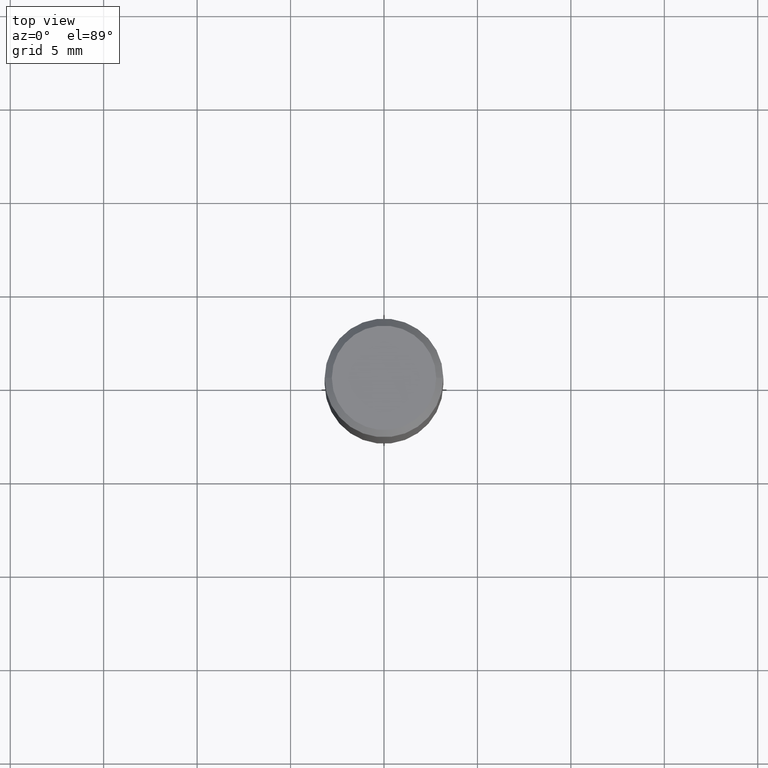
[diagram: clean part render]
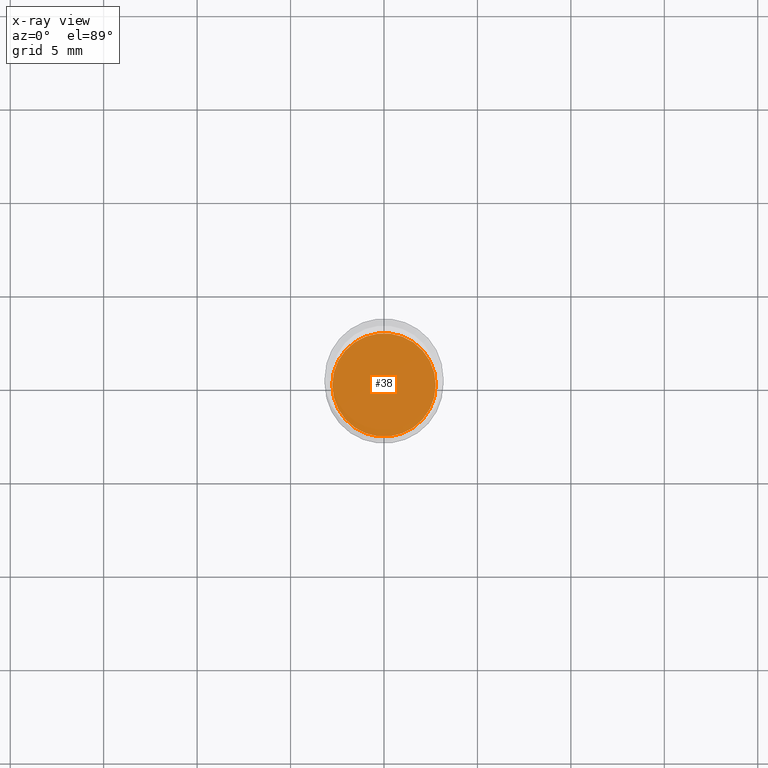
[diagram: x-ray — body ghosted, one internal face saturated and labeled with its STEP entity id]
A machine part, top view, then the same camera in x-ray: the body is ghosted and one INTERNAL B-rep face — a face not visible from any outside direction — is saturated and labeled: STEP entity #38.
In plain terms, the highlighted planar face has unit normal (-0, 0, 1).
Its self-contained STEP definition (entity closure, byte-faithful):
#4 = CIRCLE ( 'NONE', #295, 0.1088999999999999968 ) ;
#8 = CARTESIAN_POINT ( 'NONE',  ( -0.1088999999999999968, -2.278615905070892449E-15, -0.8750000000000001110 ) ) ;
#15 = VERTEX_POINT ( 'NONE', #8 ) ;
#38 = ADVANCED_FACE ( 'NONE', ( #422 ), #308, .F. ) ;
#53 = DIRECTION ( 'NONE',  ( 1.000000000000000000, -6.982962677686264344E-15, 0.000000000000000000 ) ) ;
#54 = VERTEX_POINT ( 'NONE', #460 ) ;
#57 = DIRECTION ( 'NONE',  ( 1.000000000000000000, -6.982962677686265922E-15, 4.876176775795935793E-29 ) ) ;
#60 = DIRECTION ( 'NONE',  ( -2.438088387897960049E-29, 3.491481338843145188E-15, 1.000000000000000000 ) ) ;
#76 = AXIS2_PLACEMENT_3D ( 'NONE', #206, #60, #57 ) ;
#86 = EDGE_CURVE ( 'NONE', #15, #54, #440, .T. ) ;
#133 = DIRECTION ( 'NONE',  ( -2.445468806185136597E-29, 3.491481338843145583E-15, 1.000000000000000000 ) ) ;
#206 = CARTESIAN_POINT ( 'NONE',  ( 2.139785205411994522E-29, -3.055046171487752730E-15, -0.8750000000000001110 ) ) ;
#239 = DIRECTION ( 'NONE',  ( 1.000000000000000000, -6.982962677686264344E-15, 0.000000000000000000 ) ) ;
#245 = EDGE_LOOP ( 'NONE', ( #413, #361 ) ) ;
#264 = CARTESIAN_POINT ( 'NONE',  ( 2.139785205411994522E-29, -3.055046171487752730E-15, -0.8750000000000001110 ) ) ;
#295 = AXIS2_PLACEMENT_3D ( 'NONE', #264, #412, #53 ) ;
#303 = AXIS2_PLACEMENT_3D ( 'NONE', #312, #133, #239 ) ;
#308 = PLANE ( 'NONE',  #76 ) ;
#312 = CARTESIAN_POINT ( 'NONE',  ( 2.139785205411994522E-29, -3.055046171487752730E-15, -0.8750000000000001110 ) ) ;
#325 = EDGE_CURVE ( 'NONE', #54, #15, #4, .T. ) ;
#361 = ORIENTED_EDGE ( 'NONE', *, *, #86, .F. ) ;
#412 = DIRECTION ( 'NONE',  ( -2.445468806185136597E-29, 3.491481338843145583E-15, 1.000000000000000000 ) ) ;
#413 = ORIENTED_EDGE ( 'NONE', *, *, #325, .F. ) ;
#422 = FACE_OUTER_BOUND ( 'NONE', #245, .T. ) ;
#440 = CIRCLE ( 'NONE', #303, 0.1088999999999999968 ) ;
#460 = CARTESIAN_POINT ( 'NONE',  ( 0.1088999999999999968, -3.815490807087786506E-15, -0.8750000000000001110 ) ) ;